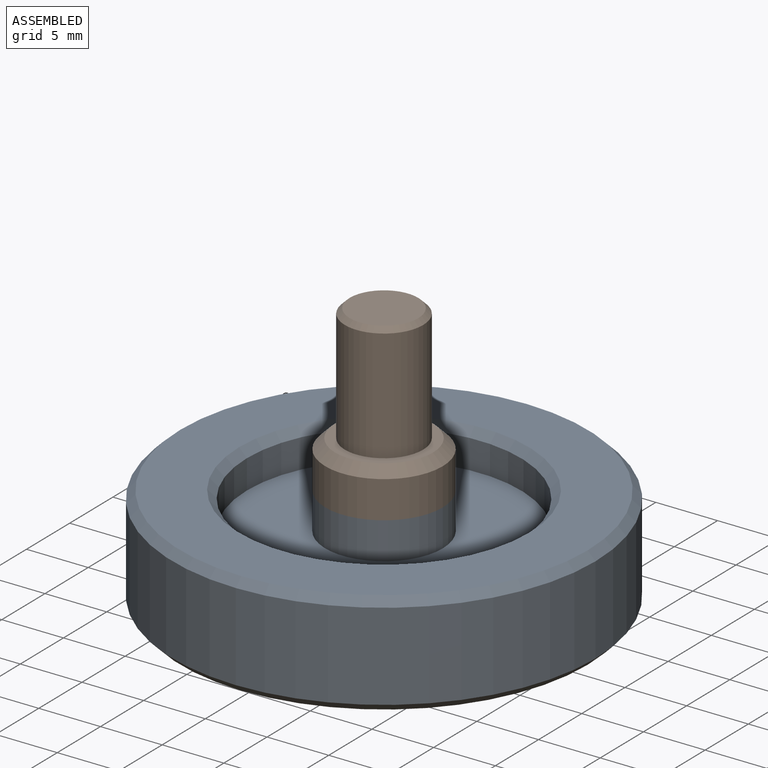
[diagram: assembled view]
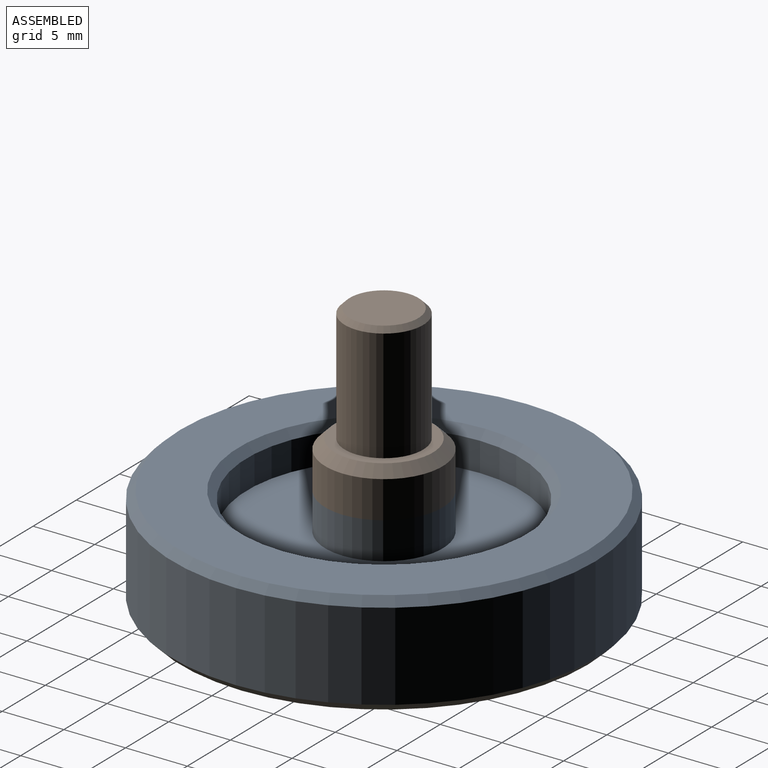
[diagram: assembled view, second angle]
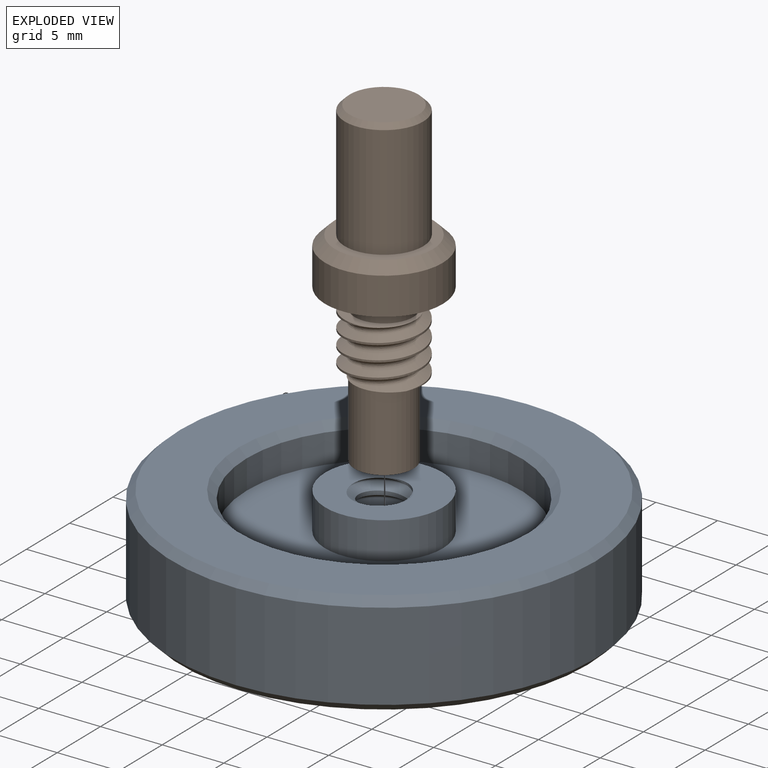
[diagram: exploded view]
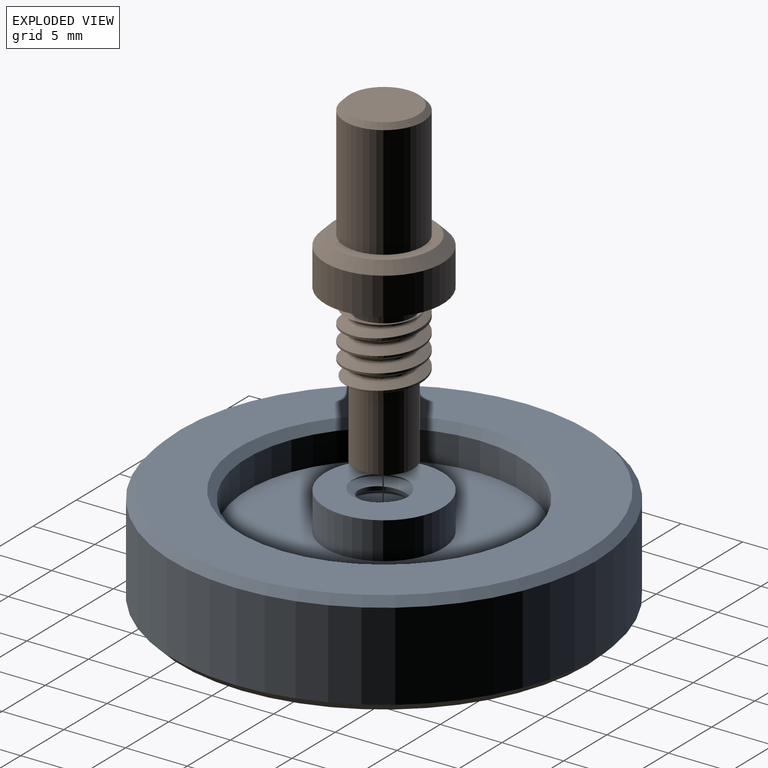
[diagram: exploded view, second angle]
ASSEMBLY  parts=2 mates=2
PART A: 19 faces, bbox 34.6x34.6x9.7 mm
  f0: plane 9.87x9.87mm, normal (0,0,-1), area 55.5mm2, adj f5,f6,f7,f8,f14
  f1: plane 9.87x9.87mm, normal (0,0,1), area 55.5mm2, adj f5,f6,f7,f8,f11
  f2: cylinder r=17.14mm len=34.29mm, axis (0,0,-1), area 766.1mm2, adj f9,f10
  f3: plane 33.02x33.02mm, normal (0,0,1), area 422.8mm2, adj f9,f18
  f4: plane 33.02x33.02mm, normal (0,0,-1), area 422.8mm2, adj f10,f17
  f5: bspline ~9.29x6.02mm, area 74.5mm2, adj f0,f1,f7,f8
  f6: bspline ~9.29x6.02mm, area 74.5mm2, adj f0,f1,f7,f8
  f7: bspline ~8.84x6.15mm, area 19.9mm2, adj f0,f1,f5,f6
  f8: cylinder r=1.92mm len=8.38mm, axis (0,0,1), area 29.5mm2, adj f0,f1,f5,f6
  f9: cone r=16.51mm half-angle=45deg, axis (0,0,-1), area 94.9mm2, adj f2,f3
  f10: cone r=17.14mm half-angle=45deg, axis (0,0,1), area 94.9mm2, adj f2,f4
  f11: cylinder r=4.76mm len=9.53mm, axis (0,0,1), area 89.7mm2, adj f1,f13
  f12: cylinder r=11.11mm len=22.23mm, axis (0,0,1), area 164.9mm2, adj f13,f18
  f13: plane 22.23x22.23mm, normal (0,0,1), area 316.7mm2, adj f11,f12
  f14: cylinder r=4.76mm len=9.53mm, axis (0,0,-1), area 89.7mm2, adj f0,f16
  f15: cylinder r=11.11mm len=22.23mm, axis (0,0,-1), area 164.9mm2, adj f16,f17
  f16: plane 22.23x22.23mm, normal (0,0,-1), area 316.7mm2, adj f14,f15
  f17: cone r=11.11mm half-angle=45deg, axis (0,0,-1), area 64.5mm2, adj f4,f15
  f18: cone r=11.11mm half-angle=45deg, axis (0,0,1), area 64.5mm2, adj f3,f12
PART B: 20 faces, bbox 9.9x9.9x26.4 mm
  f0: cylinder r=4.76mm len=9.53mm, axis (0,0,-1), area 90.3mm2, adj f2,f18
  f1: plane 7.94x7.94mm, normal (0,0,1), area 17.8mm2, adj f3,f18
  f2: plane 9.53x9.53mm, normal (0,0,-1), area 53.4mm2, adj f0,f6
  f3: cylinder r=3.17mm len=9.13mm, axis (0,0,-1), area 182.1mm2, adj f1,f19
  f4: plane 5.56x5.56mm, normal (0,0,1), area 24.2mm2, adj f19
  f5: plane 6.03x5.89mm, normal (0,0,1), area 8.6mm2, adj f6,f13,f14,f15,f16,f17
  f6: cylinder r=2.38mm len=4.76mm, axis (0,0,1), area 23.8mm2, adj f2,f5
  f7: sphere r=1.59mm, area 15.8mm2, adj f8
  f8: plane 4.76x4.76mm, normal (0,0,-1), area 9.9mm2, adj f7,f9
  f9: cylinder r=2.38mm len=6.35mm, axis (0,0,1), area 95mm2, adj f8,f11
  f10: bspline ~7.33x6.35mm, area 45.7mm2, adj f11,f12,f16,f17
  f11: plane 5.95x5.93mm, normal (0,0,-1), area 6.6mm2, adj f9,f10,f12,f13,f17
  f12: bspline ~5.75x4.98mm, area 19.2mm2, adj f10,f11,f13,f14
  f13: bspline ~7.33x6.35mm, area 52.8mm2, adj f5,f11,f12,f15,f17
  f14: bspline ~4.84x2.66mm, area 1.3mm2, adj f5,f12,f15,f16
  f15: bspline ~1.82x0.79mm, area 0.3mm2, adj f5,f13,f14
  f16: bspline ~6.67x3.85mm, area 5.2mm2, adj f5,f10,f14,f17
  f17: cylinder r=3.17mm len=6.35mm, axis (0,0,1), area 12.4mm2, adj f5,f10,f11,f13,f16
  f18: cone r=3.97mm half-angle=45deg, axis (0,0,-1), area 30.8mm2, adj f0,f1
  f19: cone r=2.78mm half-angle=45deg, axis (0,0,-1), area 10.5mm2, adj f3,f4
PLACE A t=(0.75,-12.53,-30.23)mm
PLACE B t=(0.75,-12.53,-21.85)mm
MATE planar B.f0 <-> A.f1  axis (0,0,-1) through (0.75,-12.53,-21.85)mm
MATE cylindrical A.f2 <-> B.f0  axis (0,0,-1) through (0.75,-12.53,-26.04)mm
